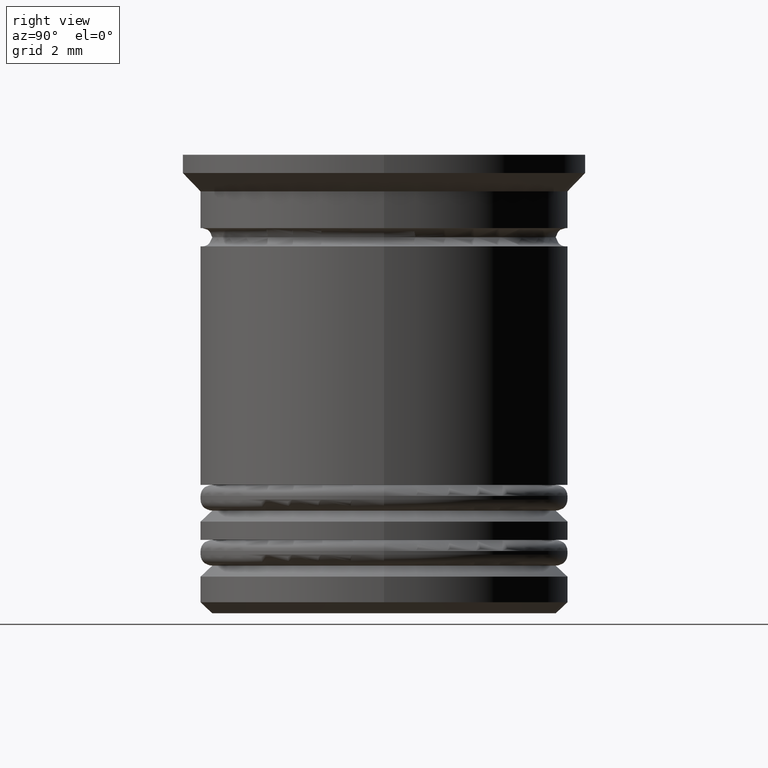
[diagram: clean part render]
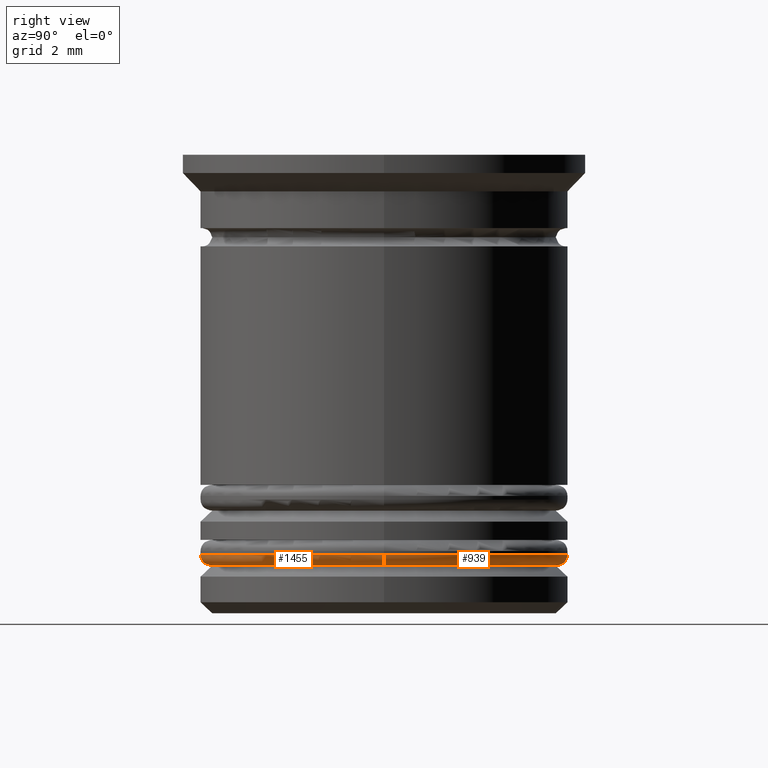
[diagram: same view with one multi-face feature highlighted, each face labeled with its STEP entity id]
A machine part, right view. The highlighted faces form ONE feature: a constant-radius fillet chain: 2 tangent blend faces with common blend radius 0.3 mm. The faces share edges in the B-rep.
Their STEP definitions:
[1] entity #1455 (Torus):
#6 = DIRECTION ( 'NONE',  ( -1.000000000000000000, 1.224646799147353207E-16, 0.000000000000000000 ) ) ;
#80 = DIRECTION ( 'NONE',  ( 0.000000000000000000, -1.000000000000000000, 0.000000000000000000 ) ) ;
#98 = DIRECTION ( 'NONE',  ( -0.000000000000000000, -0.000000000000000000, -1.000000000000000000 ) ) ;
#208 = CARTESIAN_POINT ( 'NONE',  ( 0.000000000000000000, 0.000000000000000000, -10.90000000000000924 ) ) ;
#222 = CIRCLE ( 'NONE', #1573, 0.2999999999999999334 ) ;
#338 = EDGE_CURVE ( 'NONE', #409, #1055, #1469, .T. ) ;
#344 = EDGE_CURVE ( 'NONE', #409, #1321, #1058, .T. ) ;
#362 = TOROIDAL_SURFACE ( 'NONE', #1409, 4.700000000000003730, 0.2999999999999999889 ) ;
#363 = CARTESIAN_POINT ( 'NONE',  ( 4.700000000000003730, 0.000000000000000000, -11.20000000000000817 ) ) ;
#409 = VERTEX_POINT ( 'NONE', #363 ) ;
#461 = CARTESIAN_POINT ( 'NONE',  ( -4.700000000000003730, 5.939536975864667899E-16, -11.20000000000000817 ) ) ;
#470 = ORIENTED_EDGE ( 'NONE', *, *, #344, .F. ) ;
#561 = AXIS2_PLACEMENT_3D ( 'NONE', #1392, #80, #1359 ) ;
#575 = CARTESIAN_POINT ( 'NONE',  ( -5.000000000000003553, 6.123233995736769241E-16, -10.90000000000000924 ) ) ;
#685 = DIRECTION ( 'NONE',  ( 1.000000000000000000, 0.000000000000000000, 0.000000000000000000 ) ) ;
#725 = VERTEX_POINT ( 'NONE', #575 ) ;
#735 = DIRECTION ( 'NONE',  ( 1.000000000000000000, 0.000000000000000000, 0.000000000000000000 ) ) ;
#776 = DIRECTION ( 'NONE',  ( 1.224646799147353207E-16, 1.000000000000000000, -0.000000000000000000 ) ) ;
#1055 = VERTEX_POINT ( 'NONE', #1285 ) ;
#1058 = CIRCLE ( 'NONE', #1723, 4.700000000000003730 ) ;
#1081 = CARTESIAN_POINT ( 'NONE',  ( -4.700000000000003730, 5.755839955992564585E-16, -10.90000000000000924 ) ) ;
#1168 = ORIENTED_EDGE ( 'NONE', *, *, #338, .T. ) ;
#1217 = FACE_OUTER_BOUND ( 'NONE', #1497, .T. ) ;
#1285 = CARTESIAN_POINT ( 'NONE',  ( 5.000000000000003553, 0.000000000000000000, -10.90000000000000924 ) ) ;
#1299 = EDGE_CURVE ( 'NONE', #1321, #725, #222, .T. ) ;
#1321 = VERTEX_POINT ( 'NONE', #461 ) ;
#1345 = AXIS2_PLACEMENT_3D ( 'NONE', #208, #1640, #685 ) ;
#1359 = DIRECTION ( 'NONE',  ( 0.000000000000000000, 0.000000000000000000, -1.000000000000000000 ) ) ;
#1384 = CARTESIAN_POINT ( 'NONE',  ( 0.000000000000000000, 0.000000000000000000, -10.90000000000000924 ) ) ;
#1392 = CARTESIAN_POINT ( 'NONE',  ( 4.700000000000003730, 0.000000000000000000, -10.90000000000000924 ) ) ;
#1409 = AXIS2_PLACEMENT_3D ( 'NONE', #1384, #1980, #1859 ) ;
#1455 = ADVANCED_FACE ( 'NONE', ( #1217 ), #362, .T. ) ;
#1469 = CIRCLE ( 'NONE', #561, 0.2999999999999999334 ) ;
#1497 = EDGE_LOOP ( 'NONE', ( #1862, #470, #1168, #1578 ) ) ;
#1573 = AXIS2_PLACEMENT_3D ( 'NONE', #1081, #776, #6 ) ;
#1578 = ORIENTED_EDGE ( 'NONE', *, *, #1652, .F. ) ;
#1609 = CIRCLE ( 'NONE', #1345, 5.000000000000003553 ) ;
#1640 = DIRECTION ( 'NONE',  ( 0.000000000000000000, 0.000000000000000000, 1.000000000000000000 ) ) ;
#1652 = EDGE_CURVE ( 'NONE', #725, #1055, #1609, .T. ) ;
#1723 = AXIS2_PLACEMENT_3D ( 'NONE', #1989, #98, #735 ) ;
#1859 = DIRECTION ( 'NONE',  ( 1.000000000000000000, 0.000000000000000000, 0.000000000000000000 ) ) ;
#1862 = ORIENTED_EDGE ( 'NONE', *, *, #1299, .F. ) ;
#1980 = DIRECTION ( 'NONE',  ( 0.000000000000000000, 0.000000000000000000, 1.000000000000000000 ) ) ;
#1989 = CARTESIAN_POINT ( 'NONE',  ( 0.000000000000000000, 0.000000000000000000, -11.20000000000000817 ) ) ;
[2] entity #939 (Torus):
#6 = DIRECTION ( 'NONE',  ( -1.000000000000000000, 1.224646799147353207E-16, 0.000000000000000000 ) ) ;
#7 = FACE_OUTER_BOUND ( 'NONE', #559, .T. ) ;
#80 = DIRECTION ( 'NONE',  ( 0.000000000000000000, -1.000000000000000000, 0.000000000000000000 ) ) ;
#141 = CARTESIAN_POINT ( 'NONE',  ( 0.000000000000000000, 0.000000000000000000, -10.90000000000000924 ) ) ;
#150 = EDGE_CURVE ( 'NONE', #1321, #409, #1162, .T. ) ;
#151 = DIRECTION ( 'NONE',  ( -0.000000000000000000, -0.000000000000000000, -1.000000000000000000 ) ) ;
#222 = CIRCLE ( 'NONE', #1573, 0.2999999999999999334 ) ;
#338 = EDGE_CURVE ( 'NONE', #409, #1055, #1469, .T. ) ;
#363 = CARTESIAN_POINT ( 'NONE',  ( 4.700000000000003730, 0.000000000000000000, -11.20000000000000817 ) ) ;
#389 = EDGE_CURVE ( 'NONE', #1055, #725, #1237, .T. ) ;
#409 = VERTEX_POINT ( 'NONE', #363 ) ;
#410 = ORIENTED_EDGE ( 'NONE', *, *, #389, .F. ) ;
#438 = CARTESIAN_POINT ( 'NONE',  ( 0.000000000000000000, 0.000000000000000000, -11.20000000000000817 ) ) ;
#461 = CARTESIAN_POINT ( 'NONE',  ( -4.700000000000003730, 5.939536975864667899E-16, -11.20000000000000817 ) ) ;
#486 = AXIS2_PLACEMENT_3D ( 'NONE', #1585, #2046, #1428 ) ;
#559 = EDGE_LOOP ( 'NONE', ( #1464, #636, #410, #950 ) ) ;
#561 = AXIS2_PLACEMENT_3D ( 'NONE', #1392, #80, #1359 ) ;
#575 = CARTESIAN_POINT ( 'NONE',  ( -5.000000000000003553, 6.123233995736769241E-16, -10.90000000000000924 ) ) ;
#625 = AXIS2_PLACEMENT_3D ( 'NONE', #438, #151, #788 ) ;
#636 = ORIENTED_EDGE ( 'NONE', *, *, #1299, .T. ) ;
#725 = VERTEX_POINT ( 'NONE', #575 ) ;
#776 = DIRECTION ( 'NONE',  ( 1.224646799147353207E-16, 1.000000000000000000, -0.000000000000000000 ) ) ;
#788 = DIRECTION ( 'NONE',  ( 1.000000000000000000, 0.000000000000000000, 0.000000000000000000 ) ) ;
#939 = ADVANCED_FACE ( 'NONE', ( #7 ), #1899, .T. ) ;
#950 = ORIENTED_EDGE ( 'NONE', *, *, #338, .F. ) ;
#981 = DIRECTION ( 'NONE',  ( 0.000000000000000000, 0.000000000000000000, 1.000000000000000000 ) ) ;
#1055 = VERTEX_POINT ( 'NONE', #1285 ) ;
#1081 = CARTESIAN_POINT ( 'NONE',  ( -4.700000000000003730, 5.755839955992564585E-16, -10.90000000000000924 ) ) ;
#1162 = CIRCLE ( 'NONE', #625, 4.700000000000003730 ) ;
#1237 = CIRCLE ( 'NONE', #486, 5.000000000000003553 ) ;
#1285 = CARTESIAN_POINT ( 'NONE',  ( 5.000000000000003553, 0.000000000000000000, -10.90000000000000924 ) ) ;
#1299 = EDGE_CURVE ( 'NONE', #1321, #725, #222, .T. ) ;
#1321 = VERTEX_POINT ( 'NONE', #461 ) ;
#1359 = DIRECTION ( 'NONE',  ( 0.000000000000000000, 0.000000000000000000, -1.000000000000000000 ) ) ;
#1392 = CARTESIAN_POINT ( 'NONE',  ( 4.700000000000003730, 0.000000000000000000, -10.90000000000000924 ) ) ;
#1428 = DIRECTION ( 'NONE',  ( 1.000000000000000000, 0.000000000000000000, 0.000000000000000000 ) ) ;
#1430 = DIRECTION ( 'NONE',  ( 1.000000000000000000, 0.000000000000000000, 0.000000000000000000 ) ) ;
#1464 = ORIENTED_EDGE ( 'NONE', *, *, #150, .F. ) ;
#1469 = CIRCLE ( 'NONE', #561, 0.2999999999999999334 ) ;
#1573 = AXIS2_PLACEMENT_3D ( 'NONE', #1081, #776, #6 ) ;
#1585 = CARTESIAN_POINT ( 'NONE',  ( 0.000000000000000000, 0.000000000000000000, -10.90000000000000924 ) ) ;
#1606 = AXIS2_PLACEMENT_3D ( 'NONE', #141, #981, #1430 ) ;
#1899 = TOROIDAL_SURFACE ( 'NONE', #1606, 4.700000000000003730, 0.2999999999999999889 ) ;
#2046 = DIRECTION ( 'NONE',  ( 0.000000000000000000, 0.000000000000000000, 1.000000000000000000 ) ) ;